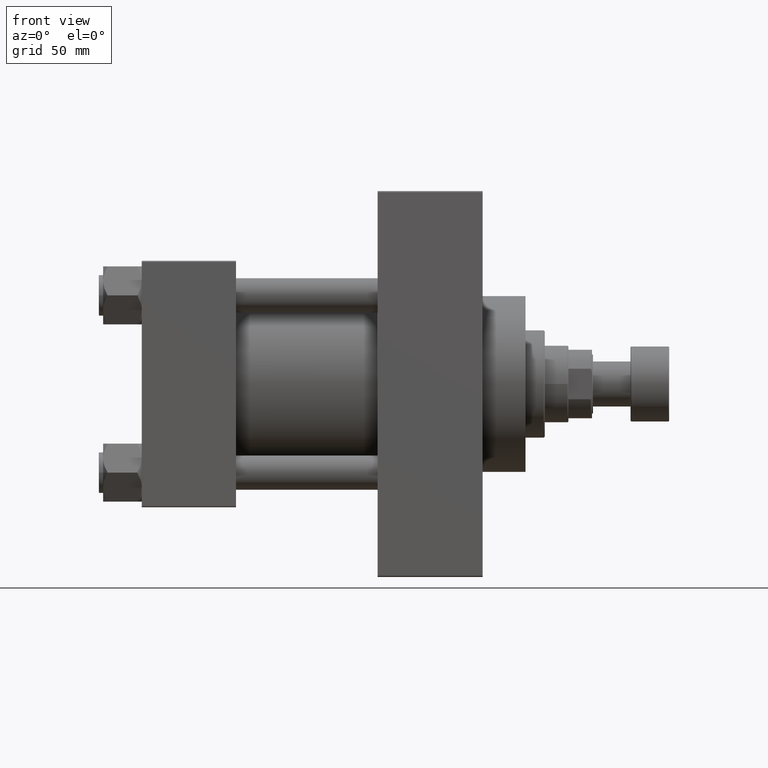
[diagram: clean part render]
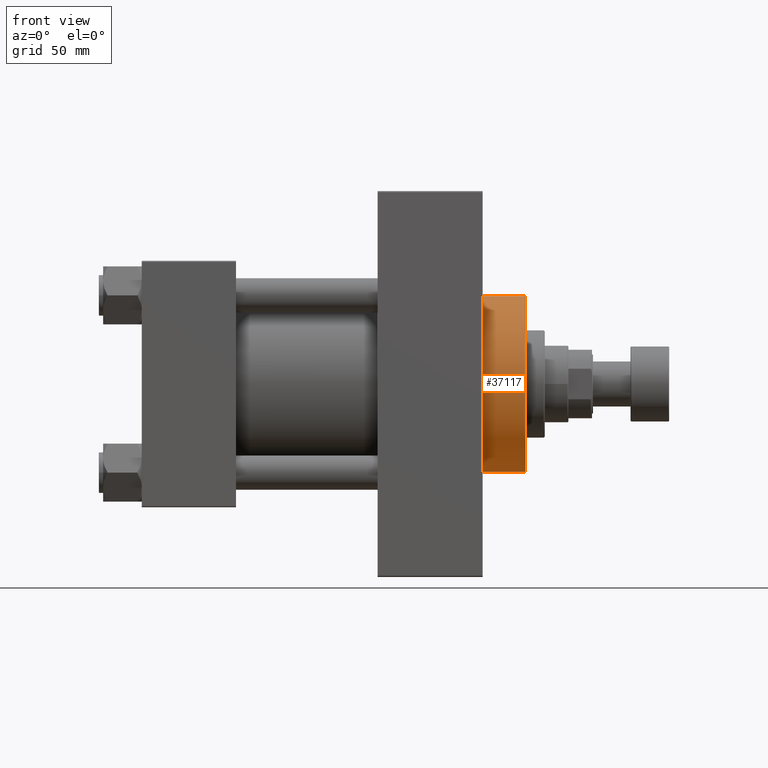
[diagram: same view with one face highlighted and labeled with its STEP entity id]
A machine part, front view. The second image highlights one B-rep face of the part: STEP entity #37117.
In plain terms, the highlighted cylindrical surface (partial cylindrical patch) has radius 41 mm, axis along (-1, -0, -0).
Its self-contained STEP definition (entity closure, byte-faithful):
#1336 = AXIS2_PLACEMENT_3D ( 'NONE', #16472, #42548, #1406 ) ;
#1406 = DIRECTION ( 'NONE',  ( 0.000000000000000000, 0.000000000000000000, -1.000000000000000000 ) ) ;
#1557 = CARTESIAN_POINT ( 'NONE',  ( 159.0000000000000000, 5.021051876504148963E-15, -41.00000000000000000 ) ) ;
#2112 = CIRCLE ( 'NONE', #26973, 41.00000000000000000 ) ;
#2298 = ORIENTED_EDGE ( 'NONE', *, *, #2383, .T. ) ;
#2383 = EDGE_CURVE ( 'NONE', #5842, #28366, #2112, .T. ) ;
#3627 = EDGE_CURVE ( 'NONE', #8068, #28366, #47075, .T. ) ;
#5842 = VERTEX_POINT ( 'NONE', #46277 ) ;
#7125 = VERTEX_POINT ( 'NONE', #9247 ) ;
#8068 = VERTEX_POINT ( 'NONE', #41724 ) ;
#8288 = AXIS2_PLACEMENT_3D ( 'NONE', #11091, #43971, #14497 ) ;
#9247 = CARTESIAN_POINT ( 'NONE',  ( 179.0000000000000000, 0.000000000000000000, 41.00000000000000000 ) ) ;
#11091 = CARTESIAN_POINT ( 'NONE',  ( 179.0000000000000000, 0.000000000000000000, 0.000000000000000000 ) ) ;
#14497 = DIRECTION ( 'NONE',  ( 0.000000000000000000, 0.000000000000000000, 1.000000000000000000 ) ) ;
#15887 = VECTOR ( 'NONE', #46431, 1000.000000000000000 ) ;
#16472 = CARTESIAN_POINT ( 'NONE',  ( 179.0000000000000000, 0.000000000000000000, 0.000000000000000000 ) ) ;
#17425 = LINE ( 'NONE', #46918, #15887 ) ;
#20348 = CARTESIAN_POINT ( 'NONE',  ( 159.0000000000000000, 0.000000000000000000, 0.000000000000000000 ) ) ;
#21304 = FACE_OUTER_BOUND ( 'NONE', #44422, .T. ) ;
#24901 = CARTESIAN_POINT ( 'NONE',  ( 179.0000000000000000, 5.021051876504148963E-15, -41.00000000000000000 ) ) ;
#26970 = CIRCLE ( 'NONE', #1336, 41.00000000000000000 ) ;
#26973 = AXIS2_PLACEMENT_3D ( 'NONE', #20348, #35220, #42529 ) ;
#28366 = VERTEX_POINT ( 'NONE', #1557 ) ;
#30473 = ORIENTED_EDGE ( 'NONE', *, *, #32148, .T. ) ;
#32148 = EDGE_CURVE ( 'NONE', #7125, #5842, #17425, .T. ) ;
#35220 = DIRECTION ( 'NONE',  ( 1.000000000000000000, 0.000000000000000000, 0.000000000000000000 ) ) ;
#37117 = ADVANCED_FACE ( 'NONE', ( #21304 ), #47857, .T. ) ;
#38281 = VECTOR ( 'NONE', #39290, 1000.000000000000000 ) ;
#39290 = DIRECTION ( 'NONE',  ( -1.000000000000000000, -0.000000000000000000, -0.000000000000000000 ) ) ;
#39807 = ORIENTED_EDGE ( 'NONE', *, *, #3627, .F. ) ;
#41724 = CARTESIAN_POINT ( 'NONE',  ( 179.0000000000000000, 5.021051876504148963E-15, -41.00000000000000000 ) ) ;
#41894 = EDGE_CURVE ( 'NONE', #7125, #8068, #26970, .T. ) ;
#42529 = DIRECTION ( 'NONE',  ( 0.000000000000000000, 0.000000000000000000, -1.000000000000000000 ) ) ;
#42548 = DIRECTION ( 'NONE',  ( 1.000000000000000000, 0.000000000000000000, 0.000000000000000000 ) ) ;
#43971 = DIRECTION ( 'NONE',  ( -1.000000000000000000, -0.000000000000000000, -0.000000000000000000 ) ) ;
#44422 = EDGE_LOOP ( 'NONE', ( #39807, #47572, #30473, #2298 ) ) ;
#46277 = CARTESIAN_POINT ( 'NONE',  ( 159.0000000000000000, 0.000000000000000000, 41.00000000000000000 ) ) ;
#46431 = DIRECTION ( 'NONE',  ( -1.000000000000000000, -0.000000000000000000, -0.000000000000000000 ) ) ;
#46918 = CARTESIAN_POINT ( 'NONE',  ( 179.0000000000000000, 0.000000000000000000, 41.00000000000000000 ) ) ;
#47075 = LINE ( 'NONE', #24901, #38281 ) ;
#47572 = ORIENTED_EDGE ( 'NONE', *, *, #41894, .F. ) ;
#47857 = CYLINDRICAL_SURFACE ( 'NONE', #8288, 41.00000000000000000 ) ;